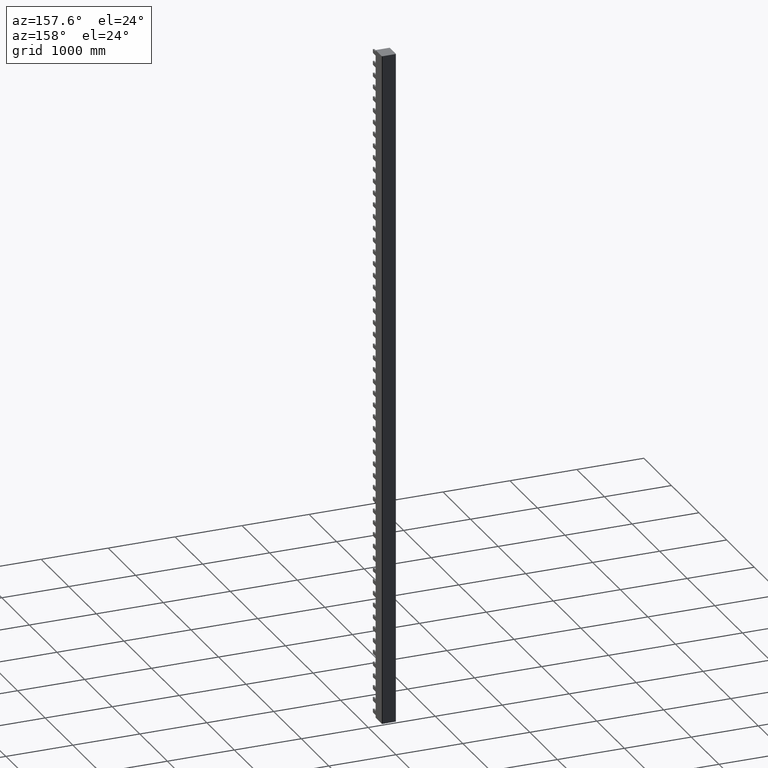
[diagram: clean part render]
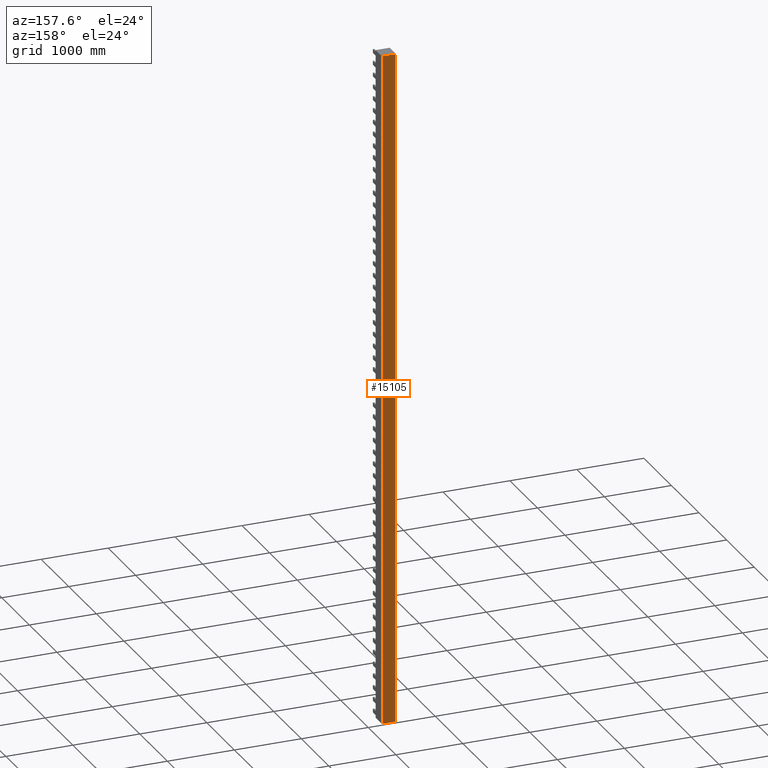
[diagram: same view with one face highlighted and labeled with its STEP entity id]
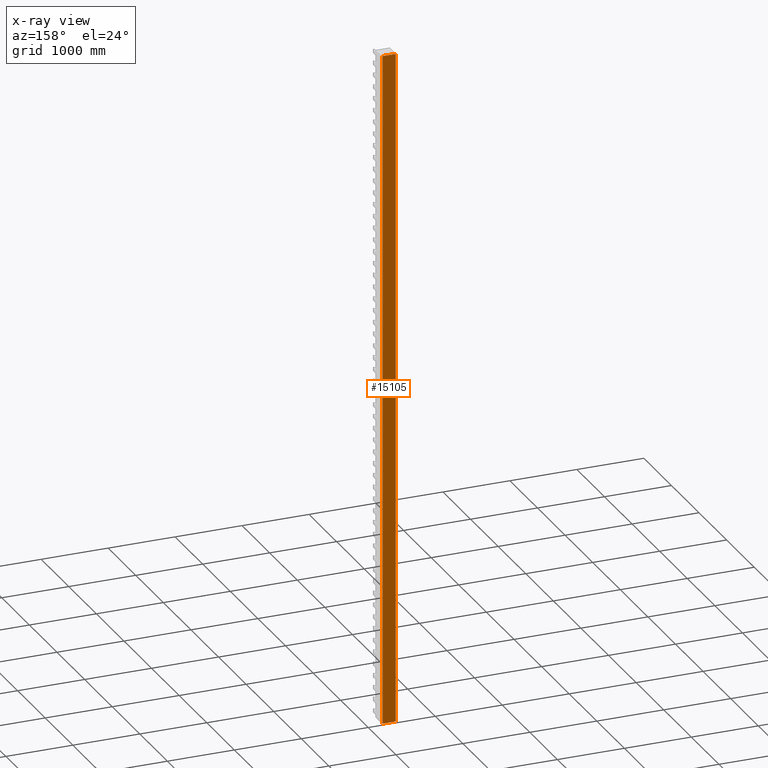
[diagram: x-ray of the same camera — body ghosted, the highlighted face saturated]
A machine part, auxiliary view. The second image highlights one B-rep face of the part: STEP entity #15105.
The next image is the same camera in x-ray: the body ghosted, the highlighted face saturated — about 0% of this face is hidden behind the body in this view.
In plain terms, the highlighted planar face has unit normal (0, 1, 0).
Its self-contained STEP definition (entity closure, byte-faithful):
#14956=CARTESIAN_POINT('',(6708.0208871467576,6276.4066631202131,-10000.0));
#14957=VERTEX_POINT('',#14956);
#14965=CARTESIAN_POINT('',(6900.0208871467676,6276.4066631202195,-10000.0));
#14966=VERTEX_POINT('',#14965);
#14967=CARTESIAN_POINT('',(6900.0208871467676,6276.4066631202168,-10000.0));
#14968=DIRECTION('',(-1.0,0.0,0.0));
#14969=VECTOR('',#14968,192.00000000001);
#14970=LINE('',#14967,#14969);
#14971=EDGE_CURVE('',#14966,#14957,#14970,.T.);
#15023=CARTESIAN_POINT('',(6900.0208871467676,6276.4066631202568,90.0));
#15024=VERTEX_POINT('',#15023);
#15032=CARTESIAN_POINT('',(6708.0208871467576,6276.4066631201767,90.0));
#15033=VERTEX_POINT('',#15032);
#15034=CARTESIAN_POINT('',(6708.0208871467576,6276.4066631201767,90.0));
#15035=DIRECTION('',(1.0,4.168517E-013,0.0));
#15036=VECTOR('',#15035,192.00000000001);
#15037=LINE('',#15034,#15036);
#15038=EDGE_CURVE('',#15033,#15024,#15037,.T.);
#15073=CARTESIAN_POINT('',(6900.0208871467676,6276.4066631202195,-10000.0));
#15074=DIRECTION('',(0.0,0.0,1.0));
#15075=VECTOR('',#15074,10090.0);
#15076=LINE('',#15073,#15075);
#15077=EDGE_CURVE('',#14966,#15024,#15076,.T.);
#15089=CARTESIAN_POINT('',(6804.0208871467603,6276.4066631202159,0.0));
#15090=DIRECTION('',(0.0,1.0,0.0));
#15091=DIRECTION('',(0.0,0.0,1.0));
#15092=AXIS2_PLACEMENT_3D('',#15089,#15090,#15091);
#15093=PLANE('',#15092);
#15094=ORIENTED_EDGE('',*,*,#15077,.F.);
#15095=ORIENTED_EDGE('',*,*,#14971,.T.);
#15096=CARTESIAN_POINT('',(6708.0208871467576,6276.4066631202131,90.0));
#15097=DIRECTION('',(0.0,0.0,-1.0));
#15098=VECTOR('',#15097,10090.0);
#15099=LINE('',#15096,#15098);
#15100=EDGE_CURVE('',#15033,#14957,#15099,.T.);
#15101=ORIENTED_EDGE('',*,*,#15100,.F.);
#15102=ORIENTED_EDGE('',*,*,#15038,.T.);
#15103=EDGE_LOOP('',(#15094,#15095,#15101,#15102));
#15104=FACE_OUTER_BOUND('',#15103,.T.);
#15105=ADVANCED_FACE('',(#15104),#15093,.T.);